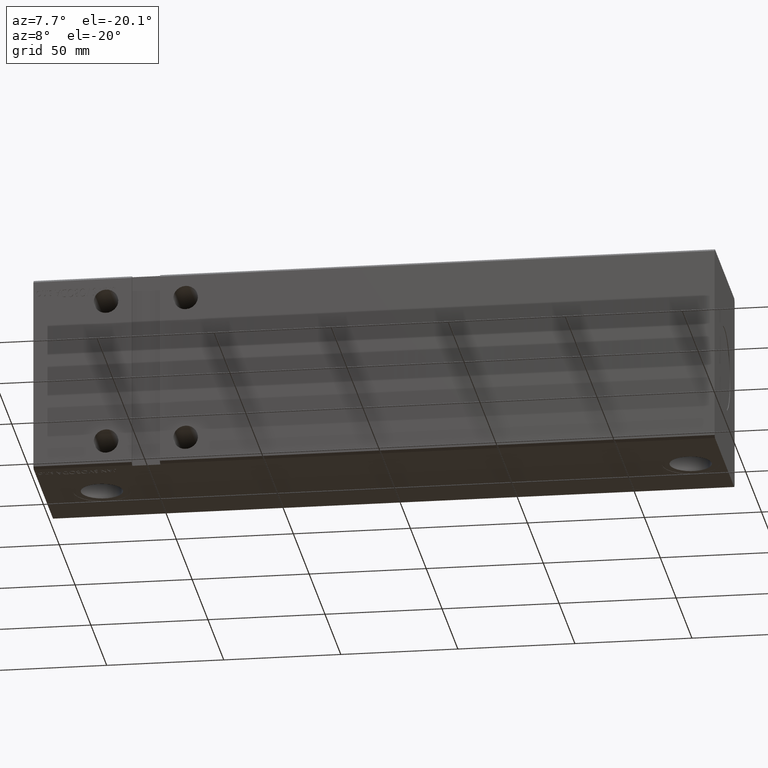
[diagram: clean part render]
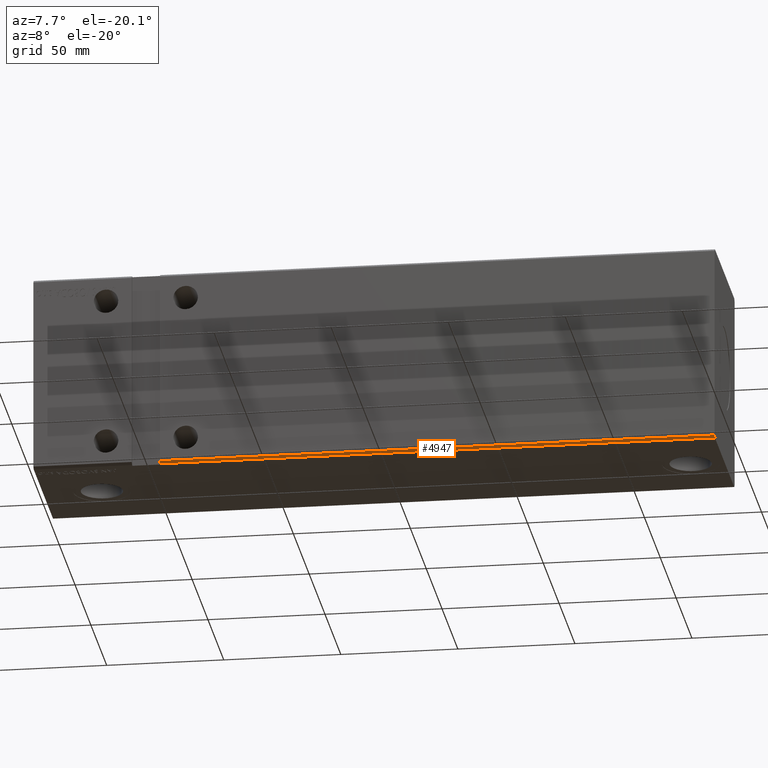
[diagram: same view with one face highlighted and labeled with its STEP entity id]
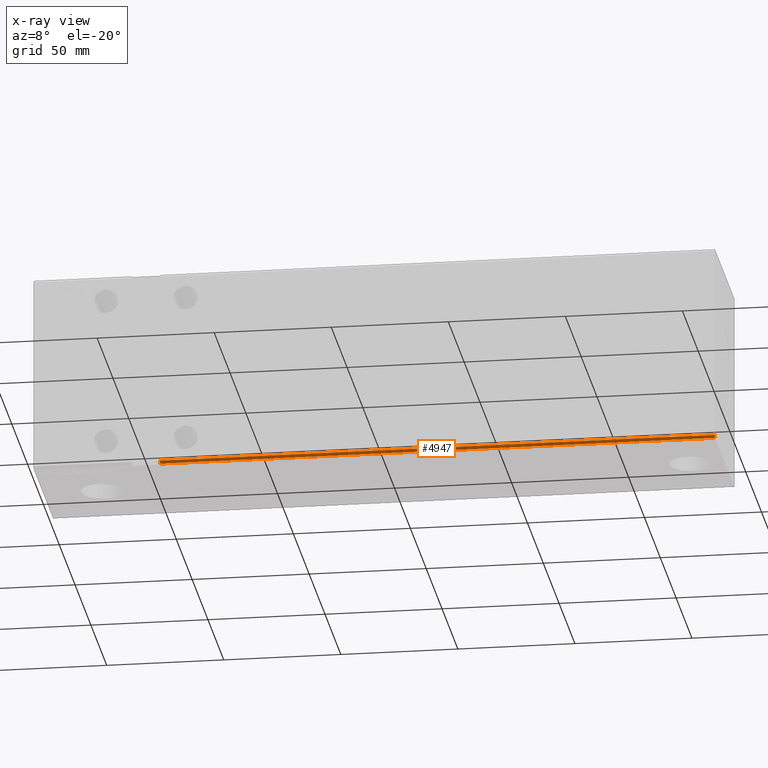
[diagram: x-ray of the same camera — body ghosted, the highlighted face saturated]
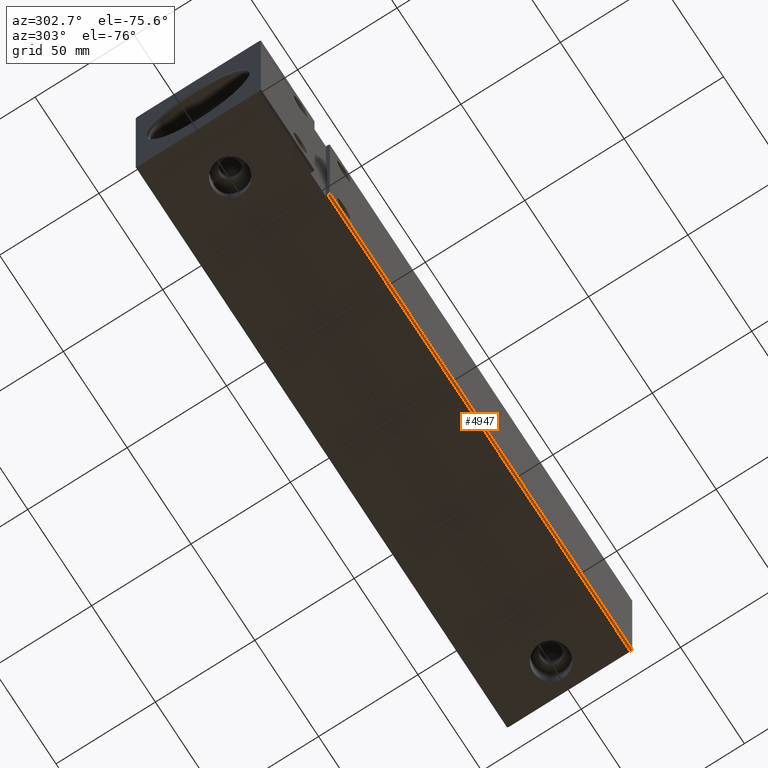
[diagram: same view with one face highlighted and labeled with its STEP entity id]
A machine part, auxiliary view. The second image highlights one B-rep face of the part: STEP entity #4947.
The next image is the same camera in x-ray: the body ghosted, the highlighted face saturated — about 0% of this face is hidden behind the body in this view.
A second angle (auxiliary view) of the same face is appended — the face is thin or edge-on in the first view.
In plain terms, the highlighted planar face has unit normal (-0, 0.7071, 0.7071).
Its self-contained STEP definition (entity closure, byte-faithful):
#1222 = AXIS2_PLACEMENT_3D ( 'NONE', #1527, #12205, #8569 ) ;
#1374 = ORIENTED_EDGE ( 'NONE', *, *, #19848, .F. ) ;
#1527 = CARTESIAN_POINT ( 'NONE',  ( 291.0000000000000000, -31.50000000000000000, -41.50000000000000711 ) ) ;
#1879 = CARTESIAN_POINT ( 'NONE',  ( 54.00000000000000000, -30.50000000000000711, -42.50000000000000711 ) ) ;
#3022 = CARTESIAN_POINT ( 'NONE',  ( 53.99999999999999289, -31.50000000000000000, -41.50000000000000711 ) ) ;
#4414 = CARTESIAN_POINT ( 'NONE',  ( 291.0000000000000000, -31.50000000000000000, -41.50000000000000711 ) ) ;
#4573 = DIRECTION ( 'NONE',  ( -1.000000000000000000, -0.000000000000000000, -0.000000000000000000 ) ) ;
#4947 = ADVANCED_FACE ( 'NONE', ( #40920 ), #21367, .F. ) ;
#5067 = EDGE_CURVE ( 'NONE', #18120, #24887, #29222, .T. ) ;
#6229 = EDGE_CURVE ( 'NONE', #24346, #39974, #32170, .T. ) ;
#8569 = DIRECTION ( 'NONE',  ( 0.000000000000000000, -0.7071067811865451302, 0.7071067811865500152 ) ) ;
#11110 = LINE ( 'NONE', #41104, #38213 ) ;
#11539 = DIRECTION ( 'NONE',  ( -1.000000000000000000, -0.000000000000000000, -0.000000000000000000 ) ) ;
#12205 = DIRECTION ( 'NONE',  ( -0.000000000000000000, 0.7071067811865500152, 0.7071067811865451302 ) ) ;
#13007 = DIRECTION ( 'NONE',  ( 0.000000000000000000, 0.7071067811865451302, -0.7071067811865500152 ) ) ;
#14460 = EDGE_CURVE ( 'NONE', #24346, #18120, #19961, .T. ) ;
#17119 = VECTOR ( 'NONE', #4573, 1000.000000000000000 ) ;
#17904 = ORIENTED_EDGE ( 'NONE', *, *, #5067, .T. ) ;
#18120 = VERTEX_POINT ( 'NONE', #28895 ) ;
#19848 = EDGE_CURVE ( 'NONE', #39974, #24887, #11110, .T. ) ;
#19961 = LINE ( 'NONE', #30159, #17119 ) ;
#21367 = PLANE ( 'NONE',  #1222 ) ;
#22847 = DIRECTION ( 'NONE',  ( 0.000000000000000000, 0.7071067811865451302, -0.7071067811865500152 ) ) ;
#24346 = VERTEX_POINT ( 'NONE', #4414 ) ;
#24887 = VERTEX_POINT ( 'NONE', #1879 ) ;
#25114 = VECTOR ( 'NONE', #13007, 1000.000000000000114 ) ;
#26021 = CARTESIAN_POINT ( 'NONE',  ( 291.0000000000000000, -30.50000000000000711, -42.50000000000000711 ) ) ;
#28173 = ORIENTED_EDGE ( 'NONE', *, *, #14460, .T. ) ;
#28895 = CARTESIAN_POINT ( 'NONE',  ( 54.00000000000000000, -31.50000000000000000, -41.50000000000000711 ) ) ;
#29188 = CARTESIAN_POINT ( 'NONE',  ( 291.0000000000000000, -31.50000000000000000, -41.50000000000000711 ) ) ;
#29222 = LINE ( 'NONE', #3022, #38000 ) ;
#30159 = CARTESIAN_POINT ( 'NONE',  ( 291.0000000000000000, -31.50000000000000000, -41.50000000000000711 ) ) ;
#32170 = LINE ( 'NONE', #29188, #25114 ) ;
#32569 = ORIENTED_EDGE ( 'NONE', *, *, #6229, .F. ) ;
#32615 = EDGE_LOOP ( 'NONE', ( #28173, #17904, #1374, #32569 ) ) ;
#38000 = VECTOR ( 'NONE', #22847, 1000.000000000000114 ) ;
#38213 = VECTOR ( 'NONE', #11539, 1000.000000000000000 ) ;
#39974 = VERTEX_POINT ( 'NONE', #26021 ) ;
#40920 = FACE_OUTER_BOUND ( 'NONE', #32615, .T. ) ;
#41104 = CARTESIAN_POINT ( 'NONE',  ( 291.0000000000000000, -30.50000000000000711, -42.50000000000000711 ) ) ;